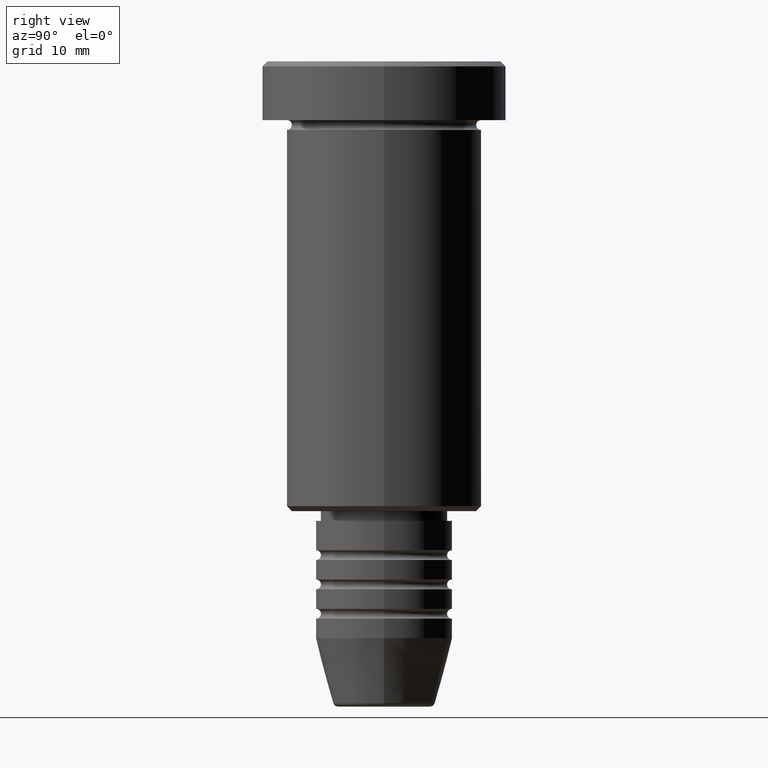
[diagram: clean part render]
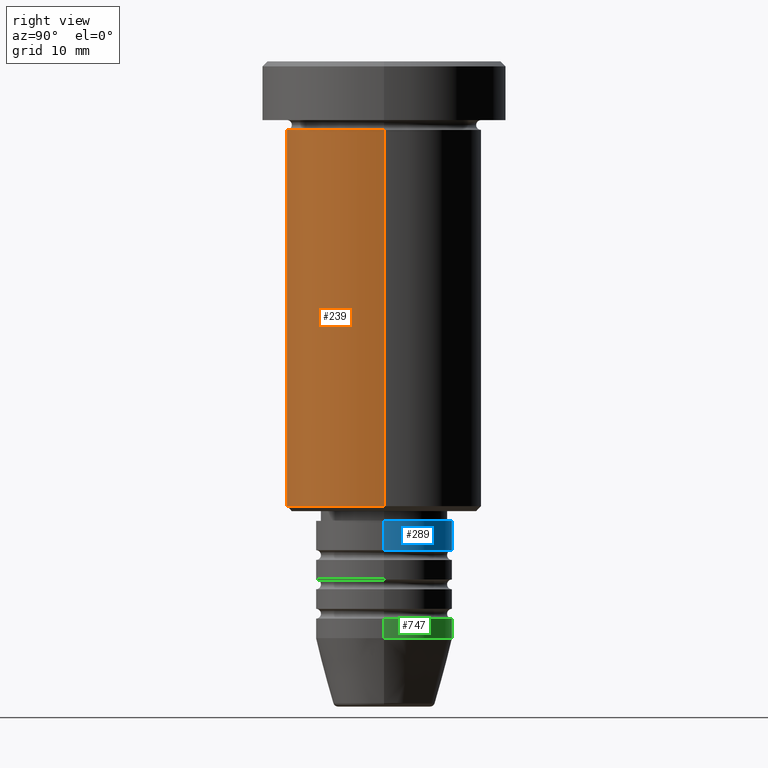
[diagram: same view with three faces highlighted in distinct colors, each labeled with its STEP entity id]
A machine part, right view with three faces highlighted in distinct colors.
Their STEP definitions:

[orange] entity #239 — the highlighted cylindrical surface (partial cylindrical patch) has radius 10 mm, axis along (-0, -0, 1).
#22 = CARTESIAN_POINT ( 'NONE',  ( -10.00000000000000000, 1.224646799147353256E-15, -45.50000000000001421 ) ) ;
#29 = AXIS2_PLACEMENT_3D ( 'NONE', #726, #264, #991 ) ;
#35 = VERTEX_POINT ( 'NONE', #22 ) ;
#52 = VERTEX_POINT ( 'NONE', #551 ) ;
#129 = ORIENTED_EDGE ( 'NONE', *, *, #597, .F. ) ;
#225 = CARTESIAN_POINT ( 'NONE',  ( -10.00000000000000000, 1.224646799147353256E-15, 0.000000000000000000 ) ) ;
#228 = FACE_OUTER_BOUND ( 'NONE', #872, .T. ) ;
#238 = VECTOR ( 'NONE', #955, 1000.000000000000000 ) ;
#239 = ADVANCED_FACE ( 'NONE', ( #228 ), #398, .T. ) ;
#248 = CARTESIAN_POINT ( 'NONE',  ( 0.000000000000000000, 0.000000000000000000, -6.999999999999996447 ) ) ;
#264 = DIRECTION ( 'NONE',  ( -0.000000000000000000, -0.000000000000000000, 1.000000000000000000 ) ) ;
#306 = VERTEX_POINT ( 'NONE', #1161 ) ;
#336 = CIRCLE ( 'NONE', #1115, 10.00000000000000000 ) ;
#365 = EDGE_CURVE ( 'NONE', #35, #52, #1155, .T. ) ;
#398 = CYLINDRICAL_SURFACE ( 'NONE', #659, 10.00000000000000000 ) ;
#440 = DIRECTION ( 'NONE',  ( 1.000000000000000000, 0.000000000000000000, 0.000000000000000000 ) ) ;
#551 = CARTESIAN_POINT ( 'NONE',  ( 10.00000000000000000, 0.000000000000000000, -45.50000000000001421 ) ) ;
#597 = EDGE_CURVE ( 'NONE', #35, #1067, #774, .T. ) ;
#600 = DIRECTION ( 'NONE',  ( 1.000000000000000000, 0.000000000000000000, 0.000000000000000000 ) ) ;
#627 = EDGE_CURVE ( 'NONE', #52, #306, #1053, .T. ) ;
#634 = DIRECTION ( 'NONE',  ( -0.000000000000000000, -0.000000000000000000, 1.000000000000000000 ) ) ;
#659 = AXIS2_PLACEMENT_3D ( 'NONE', #865, #950, #600 ) ;
#722 = ORIENTED_EDGE ( 'NONE', *, *, #875, .F. ) ;
#726 = CARTESIAN_POINT ( 'NONE',  ( 0.000000000000000000, 0.000000000000000000, -45.50000000000001421 ) ) ;
#739 = VECTOR ( 'NONE', #1046, 1000.000000000000000 ) ;
#774 = LINE ( 'NONE', #225, #238 ) ;
#865 = CARTESIAN_POINT ( 'NONE',  ( 0.000000000000000000, 0.000000000000000000, 0.000000000000000000 ) ) ;
#872 = EDGE_LOOP ( 'NONE', ( #129, #1142, #996, #722 ) ) ;
#875 = EDGE_CURVE ( 'NONE', #1067, #306, #336, .T. ) ;
#950 = DIRECTION ( 'NONE',  ( -0.000000000000000000, -0.000000000000000000, 1.000000000000000000 ) ) ;
#955 = DIRECTION ( 'NONE',  ( -0.000000000000000000, -0.000000000000000000, 1.000000000000000000 ) ) ;
#991 = DIRECTION ( 'NONE',  ( -1.000000000000000000, 0.000000000000000000, 0.000000000000000000 ) ) ;
#996 = ORIENTED_EDGE ( 'NONE', *, *, #627, .T. ) ;
#1036 = CARTESIAN_POINT ( 'NONE',  ( 10.00000000000000000, 0.000000000000000000, 0.000000000000000000 ) ) ;
#1046 = DIRECTION ( 'NONE',  ( -0.000000000000000000, -0.000000000000000000, 1.000000000000000000 ) ) ;
#1053 = LINE ( 'NONE', #1036, #739 ) ;
#1067 = VERTEX_POINT ( 'NONE', #1106 ) ;
#1106 = CARTESIAN_POINT ( 'NONE',  ( -10.00000000000000000, 1.224646799147353256E-15, -6.999999999999996447 ) ) ;
#1115 = AXIS2_PLACEMENT_3D ( 'NONE', #248, #634, #440 ) ;
#1142 = ORIENTED_EDGE ( 'NONE', *, *, #365, .T. ) ;
#1155 = CIRCLE ( 'NONE', #29, 10.00000000000000000 ) ;
#1161 = CARTESIAN_POINT ( 'NONE',  ( 10.00000000000000000, 0.000000000000000000, -6.999999999999996447 ) ) ;

[blue] entity #289 — the highlighted cylindrical surface (partial cylindrical patch) has radius 7 mm, axis along (-0, -0, 1).
#3 = CARTESIAN_POINT ( 'NONE',  ( 7.000000000000000000, 0.000000000000000000, -47.00000000000000000 ) ) ;
#37 = CARTESIAN_POINT ( 'NONE',  ( -7.000000000000000000, 8.572527594031473190E-16, -49.99999999999997158 ) ) ;
#54 = DIRECTION ( 'NONE',  ( 1.000000000000000000, 0.000000000000000000, 0.000000000000000000 ) ) ;
#87 = DIRECTION ( 'NONE',  ( -0.000000000000000000, -0.000000000000000000, 1.000000000000000000 ) ) ;
#92 = CARTESIAN_POINT ( 'NONE',  ( 7.000000000000000000, 0.000000000000000000, -49.99999999999997158 ) ) ;
#138 = CYLINDRICAL_SURFACE ( 'NONE', #1111, 7.000000000000000000 ) ;
#155 = VERTEX_POINT ( 'NONE', #3 ) ;
#185 = CARTESIAN_POINT ( 'NONE',  ( -7.000000000000000000, 8.572527594031473190E-16, -47.00000000000000000 ) ) ;
#187 = EDGE_CURVE ( 'NONE', #155, #961, #565, .T. ) ;
#189 = ORIENTED_EDGE ( 'NONE', *, *, #208, .T. ) ;
#200 = CARTESIAN_POINT ( 'NONE',  ( -7.000000000000000000, 8.572527594031473190E-16, 0.000000000000000000 ) ) ;
#208 = EDGE_CURVE ( 'NONE', #939, #703, #867, .T. ) ;
#219 = DIRECTION ( 'NONE',  ( 1.000000000000000000, 0.000000000000000000, 0.000000000000000000 ) ) ;
#255 = CARTESIAN_POINT ( 'NONE',  ( 0.000000000000000000, 0.000000000000000000, 0.000000000000000000 ) ) ;
#274 = ORIENTED_EDGE ( 'NONE', *, *, #187, .F. ) ;
#277 = ORIENTED_EDGE ( 'NONE', *, *, #549, .F. ) ;
#286 = LINE ( 'NONE', #200, #834 ) ;
#289 = ADVANCED_FACE ( 'NONE', ( #684 ), #138, .T. ) ;
#296 = ORIENTED_EDGE ( 'NONE', *, *, #505, .T. ) ;
#410 = EDGE_LOOP ( 'NONE', ( #189, #296, #274, #277 ) ) ;
#464 = AXIS2_PLACEMENT_3D ( 'NONE', #671, #690, #219 ) ;
#505 = EDGE_CURVE ( 'NONE', #703, #961, #286, .T. ) ;
#510 = DIRECTION ( 'NONE',  ( -0.000000000000000000, -0.000000000000000000, 1.000000000000000000 ) ) ;
#549 = EDGE_CURVE ( 'NONE', #939, #155, #644, .T. ) ;
#565 = CIRCLE ( 'NONE', #1154, 7.000000000000000000 ) ;
#603 = VECTOR ( 'NONE', #654, 1000.000000000000000 ) ;
#644 = LINE ( 'NONE', #1004, #603 ) ;
#654 = DIRECTION ( 'NONE',  ( -0.000000000000000000, -0.000000000000000000, 1.000000000000000000 ) ) ;
#671 = CARTESIAN_POINT ( 'NONE',  ( 0.000000000000000000, 0.000000000000000000, -49.99999999999997158 ) ) ;
#684 = FACE_OUTER_BOUND ( 'NONE', #410, .T. ) ;
#690 = DIRECTION ( 'NONE',  ( -0.000000000000000000, -0.000000000000000000, 1.000000000000000000 ) ) ;
#703 = VERTEX_POINT ( 'NONE', #37 ) ;
#705 = DIRECTION ( 'NONE',  ( 1.000000000000000000, 0.000000000000000000, 0.000000000000000000 ) ) ;
#788 = CARTESIAN_POINT ( 'NONE',  ( 0.000000000000000000, 0.000000000000000000, -47.00000000000000000 ) ) ;
#834 = VECTOR ( 'NONE', #1014, 1000.000000000000000 ) ;
#867 = CIRCLE ( 'NONE', #464, 7.000000000000000000 ) ;
#939 = VERTEX_POINT ( 'NONE', #92 ) ;
#961 = VERTEX_POINT ( 'NONE', #185 ) ;
#1004 = CARTESIAN_POINT ( 'NONE',  ( 7.000000000000000000, 0.000000000000000000, 0.000000000000000000 ) ) ;
#1014 = DIRECTION ( 'NONE',  ( -0.000000000000000000, -0.000000000000000000, 1.000000000000000000 ) ) ;
#1111 = AXIS2_PLACEMENT_3D ( 'NONE', #255, #87, #705 ) ;
#1154 = AXIS2_PLACEMENT_3D ( 'NONE', #788, #510, #54 ) ;

[green] entity #747 — the highlighted cylindrical surface (partial cylindrical patch) has radius 7 mm, axis along (-0, -0, 1).
#112 = DIRECTION ( 'NONE',  ( -0.000000000000000000, -0.000000000000000000, 1.000000000000000000 ) ) ;
#116 = DIRECTION ( 'NONE',  ( -0.000000000000000000, -0.000000000000000000, 1.000000000000000000 ) ) ;
#160 = ORIENTED_EDGE ( 'NONE', *, *, #522, .F. ) ;
#161 = CARTESIAN_POINT ( 'NONE',  ( 0.000000000000000000, 0.000000000000000000, 0.000000000000000000 ) ) ;
#164 = AXIS2_PLACEMENT_3D ( 'NONE', #743, #1024, #281 ) ;
#181 = CARTESIAN_POINT ( 'NONE',  ( 7.000000000000000000, 0.000000000000000000, -59.00000000000000000 ) ) ;
#191 = EDGE_LOOP ( 'NONE', ( #591, #543, #160, #714 ) ) ;
#206 = DIRECTION ( 'NONE',  ( 1.000000000000000000, 0.000000000000000000, 0.000000000000000000 ) ) ;
#242 = VERTEX_POINT ( 'NONE', #771 ) ;
#258 = VECTOR ( 'NONE', #112, 1000.000000000000000 ) ;
#281 = DIRECTION ( 'NONE',  ( 1.000000000000000000, 0.000000000000000000, 0.000000000000000000 ) ) ;
#295 = AXIS2_PLACEMENT_3D ( 'NONE', #161, #332, #346 ) ;
#311 = CIRCLE ( 'NONE', #466, 7.000000000000000000 ) ;
#332 = DIRECTION ( 'NONE',  ( -0.000000000000000000, -0.000000000000000000, 1.000000000000000000 ) ) ;
#346 = DIRECTION ( 'NONE',  ( 1.000000000000000000, 0.000000000000000000, 0.000000000000000000 ) ) ;
#351 = FACE_OUTER_BOUND ( 'NONE', #191, .T. ) ;
#374 = VECTOR ( 'NONE', #791, 1000.000000000000000 ) ;
#375 = CARTESIAN_POINT ( 'NONE',  ( -7.000000000000000000, 8.572527594031473190E-16, -59.00000000000000000 ) ) ;
#384 = CARTESIAN_POINT ( 'NONE',  ( -7.000000000000000000, 8.572527594031473190E-16, 0.000000000000000000 ) ) ;
#425 = EDGE_CURVE ( 'NONE', #1064, #429, #658, .T. ) ;
#428 = CARTESIAN_POINT ( 'NONE',  ( 7.000000000000000000, 0.000000000000000000, 0.000000000000000000 ) ) ;
#429 = VERTEX_POINT ( 'NONE', #926 ) ;
#455 = VERTEX_POINT ( 'NONE', #181 ) ;
#466 = AXIS2_PLACEMENT_3D ( 'NONE', #921, #116, #206 ) ;
#498 = EDGE_CURVE ( 'NONE', #455, #1064, #1113, .T. ) ;
#522 = EDGE_CURVE ( 'NONE', #242, #429, #311, .T. ) ;
#543 = ORIENTED_EDGE ( 'NONE', *, *, #425, .T. ) ;
#591 = ORIENTED_EDGE ( 'NONE', *, *, #498, .T. ) ;
#658 = LINE ( 'NONE', #384, #258 ) ;
#714 = ORIENTED_EDGE ( 'NONE', *, *, #870, .F. ) ;
#724 = CYLINDRICAL_SURFACE ( 'NONE', #295, 7.000000000000000000 ) ;
#743 = CARTESIAN_POINT ( 'NONE',  ( 0.000000000000000000, 0.000000000000000000, -59.00000000000000000 ) ) ;
#747 = ADVANCED_FACE ( 'NONE', ( #351 ), #724, .T. ) ;
#771 = CARTESIAN_POINT ( 'NONE',  ( 7.000000000000000000, 0.000000000000000000, -56.99999999999999289 ) ) ;
#791 = DIRECTION ( 'NONE',  ( -0.000000000000000000, -0.000000000000000000, 1.000000000000000000 ) ) ;
#870 = EDGE_CURVE ( 'NONE', #455, #242, #898, .T. ) ;
#898 = LINE ( 'NONE', #428, #374 ) ;
#921 = CARTESIAN_POINT ( 'NONE',  ( 0.000000000000000000, 0.000000000000000000, -56.99999999999999289 ) ) ;
#926 = CARTESIAN_POINT ( 'NONE',  ( -7.000000000000000000, 8.572527594031473190E-16, -56.99999999999999289 ) ) ;
#1024 = DIRECTION ( 'NONE',  ( -0.000000000000000000, -0.000000000000000000, 1.000000000000000000 ) ) ;
#1064 = VERTEX_POINT ( 'NONE', #375 ) ;
#1113 = CIRCLE ( 'NONE', #164, 7.000000000000000000 ) ;